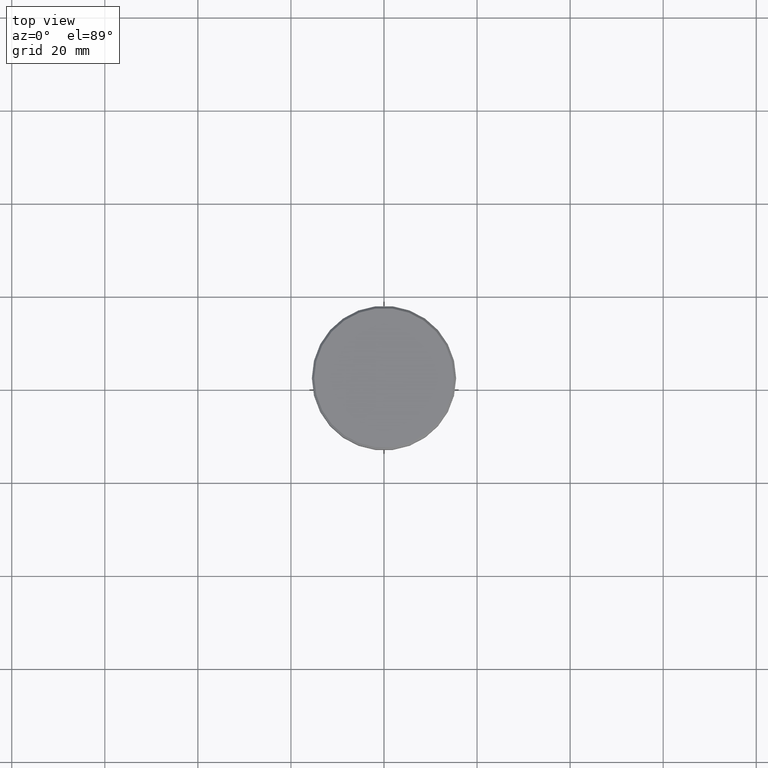
[diagram: clean part render]
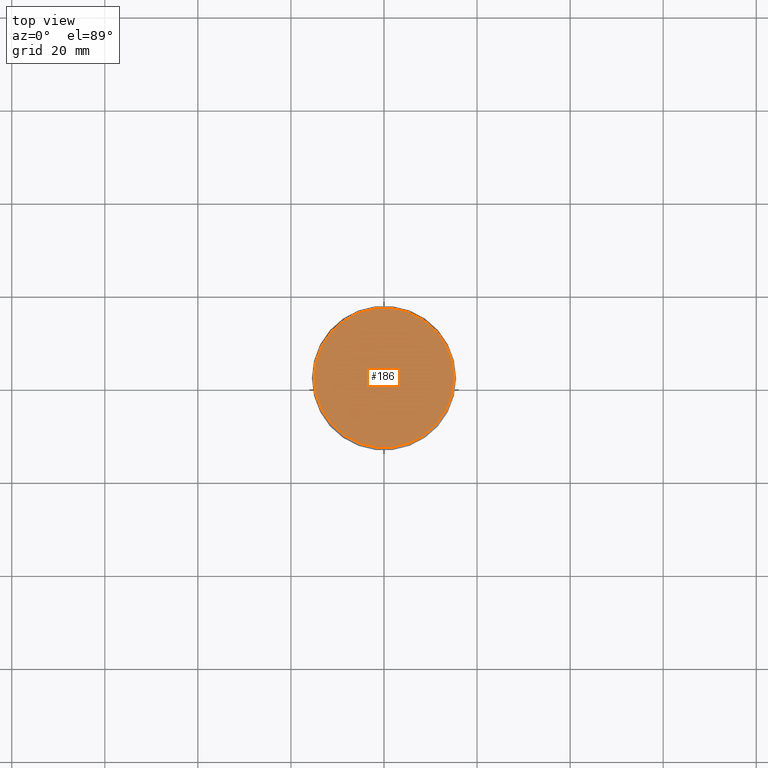
[diagram: same view with one face highlighted and labeled with its STEP entity id]
A machine part, top view. The second image highlights one B-rep face of the part: STEP entity #186.
In plain terms, the highlighted planar face has unit normal (0, -0, 1).
Its self-contained STEP definition (entity closure, byte-faithful):
#51 = FACE_OUTER_BOUND ( 'NONE', #486, .T. ) ;
#77 = DIRECTION ( 'NONE',  ( -0.000000000000000000, -0.000000000000000000, 1.000000000000000000 ) ) ;
#133 = CARTESIAN_POINT ( 'NONE',  ( 0.000000000000000000, 0.000000000000000000, 0.000000000000000000 ) ) ;
#178 = DIRECTION ( 'NONE',  ( 1.000000000000000000, 0.000000000000000000, 0.000000000000000000 ) ) ;
#180 = ORIENTED_EDGE ( 'NONE', *, *, #215, .T. ) ;
#186 = ADVANCED_FACE ( 'NONE', ( #51 ), #609, .T. ) ;
#196 = DIRECTION ( 'NONE',  ( 1.000000000000000000, 0.000000000000000000, 0.000000000000000000 ) ) ;
#215 = EDGE_CURVE ( 'NONE', #1016, #274, #267, .T. ) ;
#267 = CIRCLE ( 'NONE', #1156, 14.99999999999997158 ) ;
#274 = VERTEX_POINT ( 'NONE', #755 ) ;
#360 = CIRCLE ( 'NONE', #1037, 14.99999999999997158 ) ;
#486 = EDGE_LOOP ( 'NONE', ( #1026, #180 ) ) ;
#520 = CARTESIAN_POINT ( 'NONE',  ( 14.99999999999997158, 1.867586368699711798E-15, 0.000000000000000000 ) ) ;
#566 = DIRECTION ( 'NONE',  ( -0.000000000000000000, -0.000000000000000000, 1.000000000000000000 ) ) ;
#609 = PLANE ( 'NONE',  #690 ) ;
#690 = AXIS2_PLACEMENT_3D ( 'NONE', #133, #977, #797 ) ;
#732 = CARTESIAN_POINT ( 'NONE',  ( 0.000000000000000000, 0.000000000000000000, 0.000000000000000000 ) ) ;
#755 = CARTESIAN_POINT ( 'NONE',  ( -14.99999999999997158, 0.000000000000000000, 0.000000000000000000 ) ) ;
#756 = CARTESIAN_POINT ( 'NONE',  ( 0.000000000000000000, 0.000000000000000000, 0.000000000000000000 ) ) ;
#758 = EDGE_CURVE ( 'NONE', #274, #1016, #360, .T. ) ;
#797 = DIRECTION ( 'NONE',  ( 1.000000000000000000, 0.000000000000000000, 0.000000000000000000 ) ) ;
#977 = DIRECTION ( 'NONE',  ( 0.000000000000000000, -0.000000000000000000, 1.000000000000000000 ) ) ;
#1016 = VERTEX_POINT ( 'NONE', #520 ) ;
#1026 = ORIENTED_EDGE ( 'NONE', *, *, #758, .T. ) ;
#1037 = AXIS2_PLACEMENT_3D ( 'NONE', #756, #566, #196 ) ;
#1156 = AXIS2_PLACEMENT_3D ( 'NONE', #732, #77, #178 ) ;